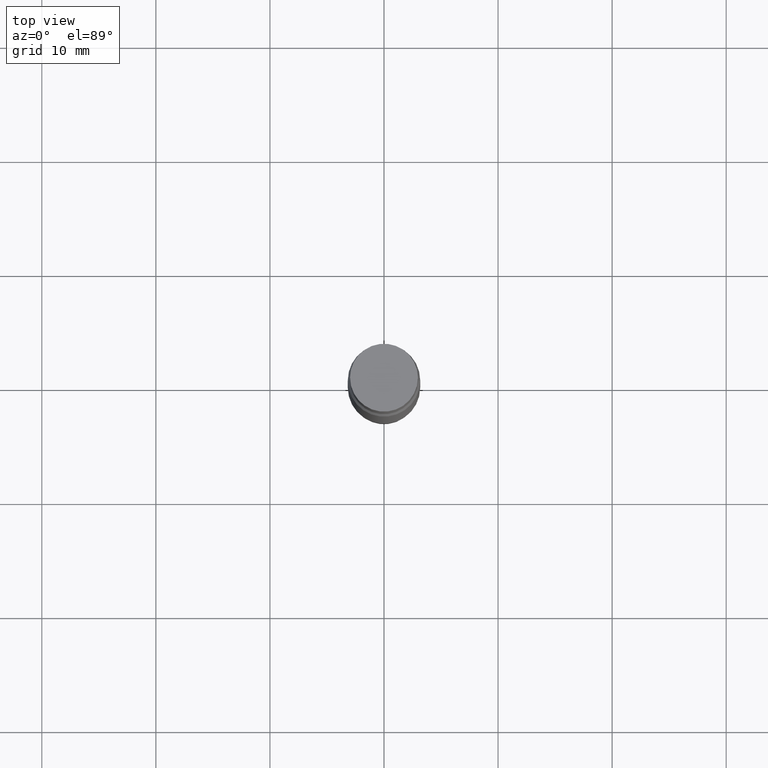
[diagram: clean part render]
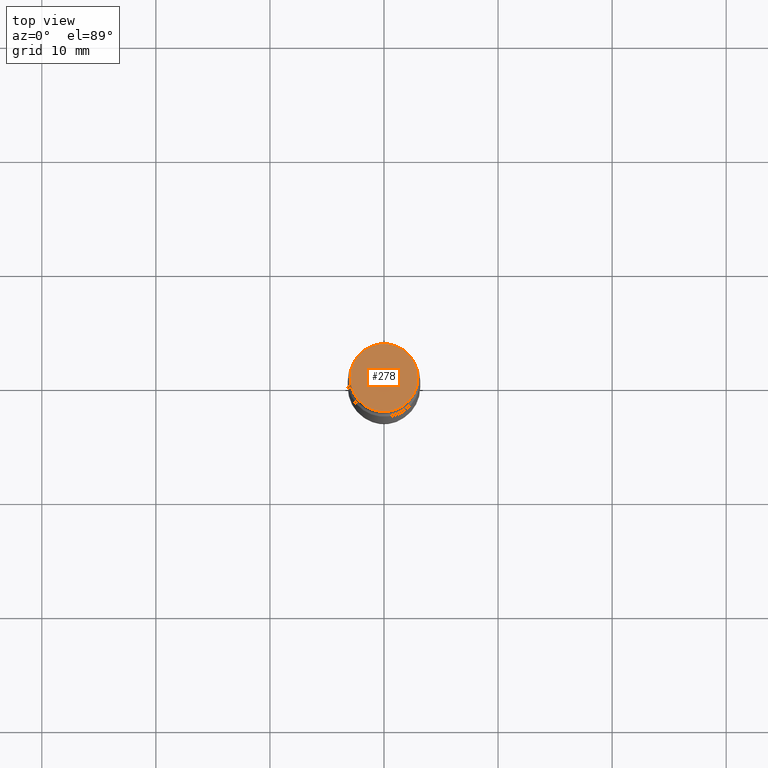
[diagram: same view with one face highlighted and labeled with its STEP entity id]
A machine part, top view. The second image highlights one B-rep face of the part: STEP entity #278.
In plain terms, the highlighted planar face has unit normal (-0, -0, -1).
Its self-contained STEP definition (entity closure, byte-faithful):
#56 = DIRECTION ( 'NONE',  ( 1.000000000000000000, -6.982962677686266711E-15, 0.000000000000000000 ) ) ;
#150 = DIRECTION ( 'NONE',  ( 2.445468806185136597E-29, 3.491805094961124077E-15, 1.000000000000000000 ) ) ;
#156 = EDGE_CURVE ( 'NONE', #177, #188, #691, .T. ) ;
#159 = CARTESIAN_POINT ( 'NONE',  ( 6.113672015462842613E-29, 4.046951474745467748E-19, 5.463695987328526437E-16 ) ) ;
#177 = VERTEX_POINT ( 'NONE', #765 ) ;
#188 = VERTEX_POINT ( 'NONE', #609 ) ;
#223 = PLANE ( 'NONE',  #572 ) ;
#278 = ADVANCED_FACE ( 'NONE', ( #599 ), #223, .F. ) ;
#403 = AXIS2_PLACEMENT_3D ( 'NONE', #873, #657, #56 ) ;
#501 = ORIENTED_EDGE ( 'NONE', *, *, #156, .T. ) ;
#528 = DIRECTION ( 'NONE',  ( 1.000000000000000000, -6.982962677686265922E-15, 2.260776888683160832E-33 ) ) ;
#540 = DIRECTION ( 'NONE',  ( 1.000000000000000000, -6.982962677686266711E-15, 0.000000000000000000 ) ) ;
#543 = AXIS2_PLACEMENT_3D ( 'NONE', #159, #150, #540 ) ;
#572 = AXIS2_PLACEMENT_3D ( 'NONE', #603, #914, #528 ) ;
#599 = FACE_OUTER_BOUND ( 'NONE', #747, .T. ) ;
#603 = CARTESIAN_POINT ( 'NONE',  ( 6.156036237064764642E-29, 6.107267170317730547E-17, 5.463695987328526437E-16 ) ) ;
#609 = CARTESIAN_POINT ( 'NONE',  ( 0.1171999999999999986, -8.179985306773559567E-16, 5.463695987328526437E-16 ) ) ;
#657 = DIRECTION ( 'NONE',  ( 2.445468806185136597E-29, 3.491805094961124077E-15, 1.000000000000000000 ) ) ;
#691 = CIRCLE ( 'NONE', #543, 0.1171999999999999986 ) ;
#747 = EDGE_LOOP ( 'NONE', ( #806, #501 ) ) ;
#765 = CARTESIAN_POINT ( 'NONE',  ( -0.1171999999999999986, -6.849621325398194571E-17, 5.463695987328557991E-16 ) ) ;
#806 = ORIENTED_EDGE ( 'NONE', *, *, #954, .T. ) ;
#835 = CIRCLE ( 'NONE', #403, 0.1171999999999999986 ) ;
#873 = CARTESIAN_POINT ( 'NONE',  ( 6.113672015462842613E-29, 4.046951474745467748E-19, 5.463695987328526437E-16 ) ) ;
#914 = DIRECTION ( 'NONE',  ( -2.438088387897959208E-29, -3.491805094961123683E-15, -1.000000000000000000 ) ) ;
#954 = EDGE_CURVE ( 'NONE', #188, #177, #835, .T. ) ;